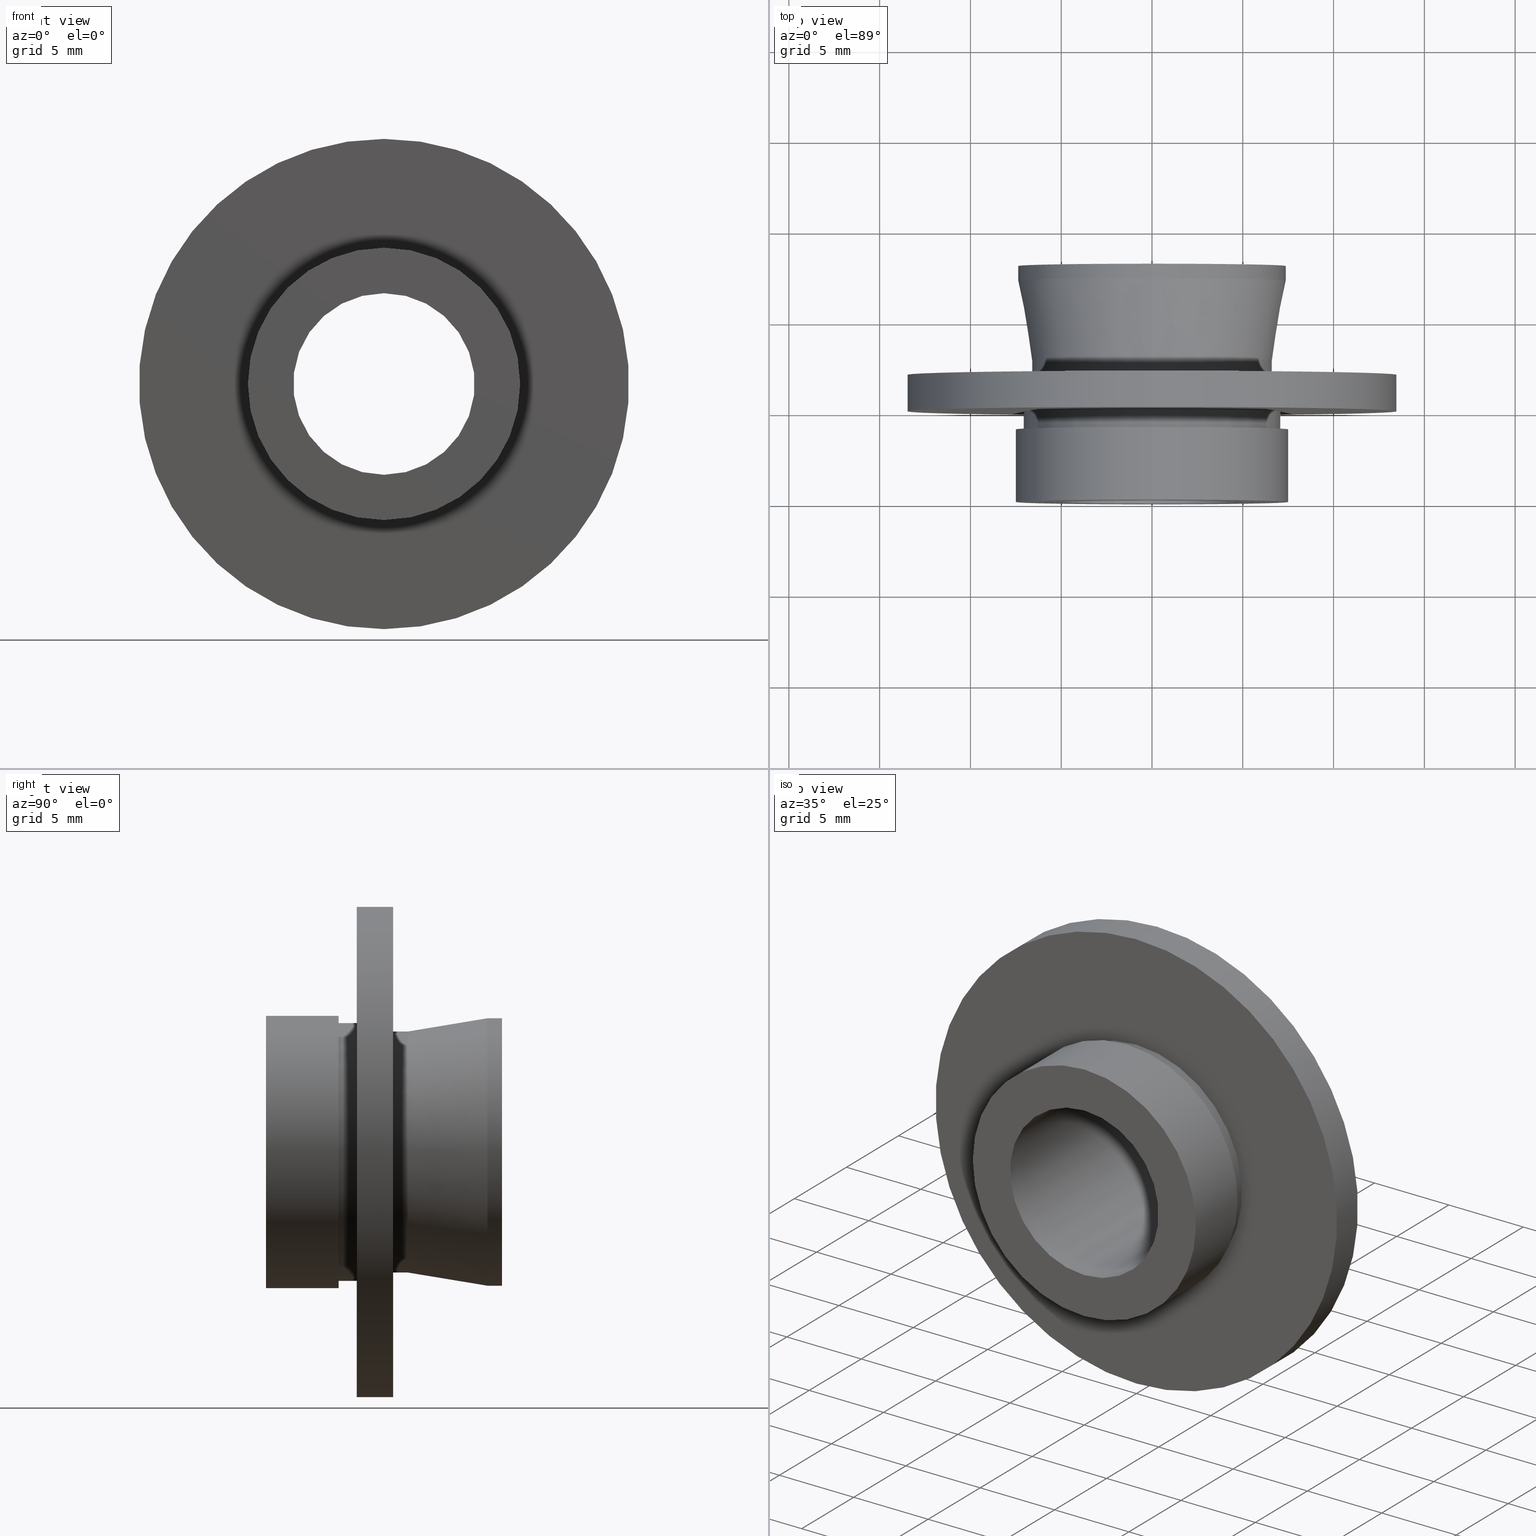
[diagram: canonical four-view strip — front | top / right | iso, engineering-drawing reading convention]
A machine part, canonical four-view strip (front | top / right | iso — engineering-drawing reading convention). The complete STEP part file that produces these views, byte-faithful:
ISO-10303-21;
HEADER;
FILE_DESCRIPTION (( 'STEP AP203' ),
    '1' );
FILE_NAME ('510019.STEP',
    '2019-09-29T08:12:36',
    ( '' ),
    ( '' ),
    'SwSTEP 2.0',
    'SolidWorks 2016',
    '' );
FILE_SCHEMA (( 'CONFIG_CONTROL_DESIGN' ));
ENDSEC;

DATA;
#1 = CARTESIAN_POINT ( 'NONE',  ( 0.0000000000000000000, 7.000000000000000000, -6.634999999999999800 ) ) ;
#2 = ORIENTED_EDGE ( 'NONE', *, *, #407, .F. ) ;
#3 = FACE_OUTER_BOUND ( 'NONE', #306, .T. ) ;
#4 = ORIENTED_EDGE ( 'NONE', *, *, #476, .F. ) ;
#5 = FACE_OUTER_BOUND ( 'NONE', #606, .T. ) ;
#6 = CARTESIAN_POINT ( 'NONE',  ( 0.0000000000000000000, 0.0000000000000000000, 0.0000000000000000000 ) ) ;
#7 = DATE_AND_TIME ( #576, #312 ) ;
#8 = CARTESIAN_POINT ( 'NONE',  ( 9.019523675720257200E-016, 13.00000000000000200, 7.365000000000000200 ) ) ;
#9 = DATE_AND_TIME ( #134, #206 ) ;
#10 = VERTEX_POINT ( 'NONE', #151 ) ;
#11 = VERTEX_POINT ( 'NONE', #205 ) ;
#12 = PRODUCT_DEFINITION_FORMATION_WITH_SPECIFIED_SOURCE ( '�κ�', '', #82, .NOT_KNOWN. ) ;
#13 = DIRECTION ( 'NONE',  ( 0.0000000000000000000, 0.0000000000000000000, -1.000000000000000000 ) ) ;
#14 = EDGE_CURVE ( 'NONE', #282, #118, #126, .T. ) ;
#15 = APPLICATION_CONTEXT ( 'configuration controlled 3d designs of mechanical parts and assemblies' ) ;
#16 = DIRECTION ( 'NONE',  ( -0.0000000000000000000, -1.000000000000000000, -0.0000000000000000000 ) ) ;
#17 = ORIENTED_EDGE ( 'NONE', *, *, #444, .F. ) ;
#18 = VECTOR ( 'NONE', #60, 1000.000000000000000 ) ;
#19 = DIRECTION ( 'NONE',  ( 1.000000000000000000, 0.0000000000000000000, 0.0000000000000000000 ) ) ;
#20 = EDGE_CURVE ( 'NONE', #11, #654, #90, .T. ) ;
#21 = DIRECTION ( 'NONE',  ( 1.000000000000000000, 0.0000000000000000000, 0.0000000000000000000 ) ) ;
#22 = CARTESIAN_POINT ( 'NONE',  ( 0.0000000000000000000, 3.999999999999996400, 0.0000000000000000000 ) ) ;
#23 = APPROVAL_DATE_TIME ( #152, #108 ) ;
#24 = EDGE_LOOP ( 'NONE', ( #499, #498, #435, #170 ) ) ;
#25 = DIRECTION ( 'NONE',  ( 0.0000000000000000000, -0.0000000000000000000, 1.000000000000000000 ) ) ;
#26 = ORIENTED_EDGE ( 'NONE', *, *, #323, .F. ) ;
#27 = APPROVAL ( #532, 'δָ��' ) ;
#28 = CYLINDRICAL_SURFACE ( 'NONE', #285, 7.365000000000000200 ) ;
#29 = ADVANCED_FACE ( 'NONE', ( #241 ), #246, .T. ) ;
#30 = CARTESIAN_POINT ( 'NONE',  ( 9.019523675720257200E-016, 12.20000000000000100, -7.365000000000001100 ) ) ;
#31 = AXIS2_PLACEMENT_3D ( 'NONE', #145, #192, #248 ) ;
#32 = ADVANCED_FACE ( 'NONE', ( #565 ), #371, .T. ) ;
#33 = ORIENTED_EDGE ( 'NONE', *, *, #334, .F. ) ;
#34 = AXIS2_PLACEMENT_3D ( 'NONE', #535, #219, #582 ) ;
#35 = CIRCLE ( 'NONE', #665, 13.49999999999999800 ) ;
#36 = FACE_OUTER_BOUND ( 'NONE', #380, .T. ) ;
#37 = AXIS2_PLACEMENT_3D ( 'NONE', #338, #329, #221 ) ;
#38 = DATE_AND_TIME ( #117, #519 ) ;
#39 = VERTEX_POINT ( 'NONE', #415 ) ;
#40 = VECTOR ( 'NONE', #403, 1000.000000000000000 ) ;
#41 = CARTESIAN_POINT ( 'NONE',  ( 0.0000000000000000000, 13.00000000000000200, 0.0000000000000000000 ) ) ;
#42 = CC_DESIGN_PERSON_AND_ORGANIZATION_ASSIGNMENT ( #569, #426, ( #133 ) ) ;
#43 = DIRECTION ( 'NONE',  ( 0.0000000000000000000, 0.0000000000000000000, -1.000000000000000000 ) ) ;
#44 = CALENDAR_DATE ( 2019, 29, 9 ) ;
#45 = APPROVAL_PERSON_ORGANIZATION ( #452, #573, #584 ) ;
#46 = ORIENTED_EDGE ( 'NONE', *, *, #437, .F. ) ;
#47 = LINE ( 'NONE', #503, #171 ) ;
#48 = EDGE_CURVE ( 'NONE', #118, #282, #110, .T. ) ;
#49 = CARTESIAN_POINT ( 'NONE',  ( 8.694992273946205800E-016, 0.0000000000000000000, 7.099999999999998800 ) ) ;
#50 = VECTOR ( 'NONE', #640, 1000.000000000000000 ) ;
#51 = PLANE ( 'NONE',  #93 ) ;
#52 = DIRECTION ( 'NONE',  ( 0.0000000000000000000, 0.0000000000000000000, -1.000000000000000000 ) ) ;
#53 = EDGE_CURVE ( 'NONE', #414, #336, #608, .T. ) ;
#54 = CARTESIAN_POINT ( 'NONE',  ( 0.0000000000000000000, 0.0000000000000000000, 0.0000000000000000000 ) ) ;
#55 = COORDINATED_UNIVERSAL_TIME_OFFSET ( 8, 0, .AHEAD. ) ;
#56 = ORIENTED_EDGE ( 'NONE', *, *, #408, .T. ) ;
#57 = CARTESIAN_POINT ( 'NONE',  ( 0.0000000000000000000, 12.20000000000000100, 7.365000000000001100 ) ) ;
#58 = CARTESIAN_POINT ( 'NONE',  ( 8.125531512342689100E-016, 0.0000000000000000000, 6.635000000000000700 ) ) ;
#59 = CARTESIAN_POINT ( 'NONE',  ( 0.0000000000000000000, 6.999999999999999100, 0.0000000000000000000 ) ) ;
#60 = DIRECTION ( 'NONE',  ( -0.0000000000000000000, -1.000000000000000000, -0.0000000000000000000 ) ) ;
#61 = DATE_AND_TIME ( #187, #175 ) ;
#62 = APPROVAL_ROLE ( '' ) ;
#63 = EDGE_LOOP ( 'NONE', ( #404, #579 ) ) ;
#64 = AXIS2_PLACEMENT_3D ( 'NONE', #59, #305, #13 ) ;
#65 = CYLINDRICAL_SURFACE ( 'NONE', #637, 13.49999999999999800 ) ;
#66 = CARTESIAN_POINT ( 'NONE',  ( 0.0000000000000000000, 12.20000000000000100, 0.0000000000000000000 ) ) ;
#67 = FACE_OUTER_BOUND ( 'NONE', #182, .T. ) ;
#68 = SECURITY_CLASSIFICATION_LEVEL ( 'unclassified' ) ;
#69 = AXIS2_PLACEMENT_3D ( 'NONE', #575, #72, #264 ) ;
#70 = SECURITY_CLASSIFICATION_LEVEL ( 'unclassified' ) ;
#71 = PERSON_AND_ORGANIZATION_ROLE ( 'design_owner' ) ;
#72 = DIRECTION ( 'NONE',  ( -0.0000000000000000000, -1.000000000000000000, -0.0000000000000000000 ) ) ;
#73 = ORIENTED_EDGE ( 'NONE', *, *, #299, .T. ) ;
#74 = ORIENTED_EDGE ( 'NONE', *, *, #585, .F. ) ;
#75 = CIRCLE ( 'NONE', #534, 5.000000000000000000 ) ;
#76 = AXIS2_PLACEMENT_3D ( 'NONE', #433, #493, #658 ) ;
#77 = APPROVAL_ROLE ( '' ) ;
#78 = CARTESIAN_POINT ( 'NONE',  ( 0.0000000000000000000, 2.155083489784135800E-015, 0.0000000000000000000 ) ) ;
#79 = ORIENTED_EDGE ( 'NONE', *, *, #550, .T. ) ;
#80 = EDGE_CURVE ( 'NONE', #459, #439, #542, .T. ) ;
#81 = ADVANCED_FACE ( 'NONE', ( #583, #487 ), #324, .F. ) ;
#82 = PRODUCT ( '510019', '510019', '', ( #372 ) ) ;
#83 = ORIENTED_EDGE ( 'NONE', *, *, #84, .F. ) ;
#84 = EDGE_CURVE ( 'NONE', #562, #313, #523, .T. ) ;
#85 = ORIENTED_EDGE ( 'NONE', *, *, #508, .F. ) ;
#86 = CARTESIAN_POINT ( 'NONE',  ( 0.0000000000000000000, 7.800000000000000700, 0.0000000000000000000 ) ) ;
#87 = CARTESIAN_POINT ( 'NONE',  ( 0.0000000000000000000, 2.155083489784135800E-015, 0.0000000000000000000 ) ) ;
#88 = COORDINATED_UNIVERSAL_TIME_OFFSET ( 8, 0, .AHEAD. ) ;
#89 = PERSON_AND_ORGANIZATION ( #553, #643 ) ;
#90 = CIRCLE ( 'NONE', #146, 7.499999999999998200 ) ;
#91 = CARTESIAN_POINT ( 'NONE',  ( 0.0000000000000000000, 0.0000000000000000000, 0.0000000000000000000 ) ) ;
#92 = ORIENTED_EDGE ( 'NONE', *, *, #443, .T. ) ;
#93 = AXIS2_PLACEMENT_3D ( 'NONE', #150, #619, #154 ) ;
#94 = AXIS2_PLACEMENT_3D ( 'NONE', #164, #273, #638 ) ;
#95 = CARTESIAN_POINT ( 'NONE',  ( 0.0000000000000000000, 6.999999999999999100, 0.0000000000000000000 ) ) ;
#96 = EDGE_LOOP ( 'NONE', ( #395, #548 ) ) ;
#97 = CIRCLE ( 'NONE', #295, 6.635000000000000700 ) ;
#98 = ORIENTED_EDGE ( 'NONE', *, *, #437, .T. ) ;
#99 = VECTOR ( 'NONE', #103, 1000.000000000000000 ) ;
#100 = CARTESIAN_POINT ( 'NONE',  ( 0.0000000000000000000, 7.000000000000000000, 0.0000000000000000000 ) ) ;
#101 = AXIS2_PLACEMENT_3D ( 'NONE', #281, #552, #385 ) ;
#102 = CARTESIAN_POINT ( 'NONE',  ( 0.0000000000000000000, 13.00000000000000200, 0.0000000000000000000 ) ) ;
#103 = DIRECTION ( 'NONE',  ( -0.0000000000000000000, -1.000000000000000000, -0.0000000000000000000 ) ) ;
#104 = APPROVAL_DATE_TIME ( #310, #438 ) ;
#105 = DIRECTION ( 'NONE',  ( 0.0000000000000000000, 0.0000000000000000000, -1.000000000000000000 ) ) ;
#106 = LOCAL_TIME ( 16, 12, 36.00000000000000000, #464 ) ;
#107 = ORIENTED_EDGE ( 'NONE', *, *, #365, .T. ) ;
#108 = APPROVAL ( #165, 'δָ��' ) ;
#109 = ORIENTED_EDGE ( 'NONE', *, *, #218, .T. ) ;
#110 = CIRCLE ( 'NONE', #649, 7.499999999999999100 ) ;
#111 = CARTESIAN_POINT ( 'NONE',  ( 6.123233995736765300E-016, 13.00000000000000200, 4.999999999999999100 ) ) ;
#112 = PLANE ( 'NONE',  #229 ) ;
#113 = PRODUCT ( '510019', '510019', '', ( #422 ) ) ;
#114 = PERSON_AND_ORGANIZATION_ROLE ( 'design_supplier' ) ;
#115 = AXIS2_PLACEMENT_3D ( 'NONE', #461, #515, #193 ) ;
#116 = PERSON_AND_ORGANIZATION_ROLE ( 'design_owner' ) ;
#117 = CALENDAR_DATE ( 2019, 29, 9 ) ;
#118 = VERTEX_POINT ( 'NONE', #427 ) ;
#119 = CIRCLE ( 'NONE', #227, 6.634999999999999800 ) ;
#120 = DIRECTION ( 'NONE',  ( -0.0000000000000000000, -1.000000000000000000, -0.0000000000000000000 ) ) ;
#121 = ORIENTED_EDGE ( 'NONE', *, *, #614, .F. ) ;
#122 = LINE ( 'NONE', #180, #511 ) ;
#123 = DIRECTION ( 'NONE',  ( 0.0000000000000000000, 0.0000000000000000000, -1.000000000000000000 ) ) ;
#124 = CARTESIAN_POINT ( 'NONE',  ( 0.0000000000000000000, 4.999999999999996400, -7.099999999999998800 ) ) ;
#125 = COORDINATED_UNIVERSAL_TIME_OFFSET ( 8, 0, .AHEAD. ) ;
#126 = CIRCLE ( 'NONE', #115, 7.499999999999999100 ) ;
#127 = ORIENTED_EDGE ( 'NONE', *, *, #615, .F. ) ;
#128 = CIRCLE ( 'NONE', #163, 5.000000000000000000 ) ;
#129 = ADVANCED_FACE ( 'NONE', ( #5 ), #278, .T. ) ;
#130 = VECTOR ( 'NONE', #169, 1000.000000000000000 ) ;
#131 = DIRECTION ( 'NONE',  ( -0.0000000000000000000, -1.000000000000000000, -0.0000000000000000000 ) ) ;
#132 = ADVANCED_FACE ( 'NONE', ( #155, #211 ), #112, .F. ) ;
#133 = SECURITY_CLASSIFICATION ( '', '', #70 ) ;
#134 = CALENDAR_DATE ( 2019, 29, 9 ) ;
#135 = ORIENTED_EDGE ( 'NONE', *, *, #432, .F. ) ;
#136 = CIRCLE ( 'NONE', #266, 7.099999999999999600 ) ;
#137 = CARTESIAN_POINT ( 'NONE',  ( 0.0000000000000000000, 0.0000000000000000000, -7.365000000000000200 ) ) ;
#138 = CARTESIAN_POINT ( 'NONE',  ( 0.0000000000000000000, 12.20000000000000100, -7.365000000000001100 ) ) ;
#139 = PERSON_AND_ORGANIZATION ( #553, #643 ) ;
#140 = ORIENTED_EDGE ( 'NONE', *, *, #586, .T. ) ;
#141 = EDGE_LOOP ( 'NONE', ( #26, #303, #209, #4 ) ) ;
#142 = CIRCLE ( 'NONE', #76, 4.999999999999999100 ) ;
#143 = CC_DESIGN_APPROVAL ( #108, ( #384 ) ) ;
#144 = CARTESIAN_POINT ( 'NONE',  ( 0.0000000000000000000, 0.0000000000000000000, -4.999999999999999100 ) ) ;
#145 = CARTESIAN_POINT ( 'NONE',  ( 0.0000000000000000000, 0.0000000000000000000, 0.0000000000000000000 ) ) ;
#146 = AXIS2_PLACEMENT_3D ( 'NONE', #6, #352, #52 ) ;
#147 = CARTESIAN_POINT ( 'NONE',  ( 0.0000000000000000000, 4.999999999999999100, -13.49999999999999800 ) ) ;
#148 = CIRCLE ( 'NONE', #64, 13.49999999999999800 ) ;
#149 = DIRECTION ( 'NONE',  ( -0.0000000000000000000, -1.000000000000000000, -0.0000000000000000000 ) ) ;
#150 = CARTESIAN_POINT ( 'NONE',  ( -4.999999999999999100, 13.00000000000000200, 0.0000000000000000000 ) ) ;
#151 = CARTESIAN_POINT ( 'NONE',  ( 0.0000000000000000000, 6.999999999999999100, -13.49999999999999800 ) ) ;
#152 = DATE_AND_TIME ( #195, #478 ) ;
#153 = VERTEX_POINT ( 'NONE', #316 ) ;
#154 = DIRECTION ( 'NONE',  ( 0.0000000000000000000, 0.0000000000000000000, -1.000000000000000000 ) ) ;
#155 = FACE_BOUND ( 'NONE', #397, .T. ) ;
#156 = DIRECTION ( 'NONE',  ( 0.0000000000000000000, 0.0000000000000000000, -1.000000000000000000 ) ) ;
#157 = DIRECTION ( 'NONE',  ( 0.0000000000000000000, 0.0000000000000000000, -1.000000000000000000 ) ) ;
#158 = DIRECTION ( 'NONE',  ( -0.0000000000000000000, -1.000000000000000000, -0.0000000000000000000 ) ) ;
#159 = AXIS2_PLACEMENT_3D ( 'NONE', #102, #460, #157 ) ;
#160 = DIRECTION ( 'NONE',  ( 0.0000000000000000000, 0.0000000000000000000, -1.000000000000000000 ) ) ;
#161 = ORIENTED_EDGE ( 'NONE', *, *, #53, .T. ) ;
#162 = LINE ( 'NONE', #484, #331 ) ;
#163 = AXIS2_PLACEMENT_3D ( 'NONE', #87, #149, #506 ) ;
#164 = CARTESIAN_POINT ( 'NONE',  ( 0.0000000000000000000, 12.20000000000000100, 0.0000000000000000000 ) ) ;
#165 = APPROVAL_STATUS ( 'not_yet_approved' ) ;
#166 = CARTESIAN_POINT ( 'NONE',  ( 0.0000000000000000000, 12.20000000000000100, 0.0000000000000000000 ) ) ;
#167 = PERSON_AND_ORGANIZATION_ROLE ( 'design_supplier' ) ;
#168 = ORIENTED_EDGE ( 'NONE', *, *, #333, .F. ) ;
#169 = DIRECTION ( 'NONE',  ( -0.0000000000000000000, -1.000000000000000000, -0.0000000000000000000 ) ) ;
#170 = ORIENTED_EDGE ( 'NONE', *, *, #20, .F. ) ;
#171 = VECTOR ( 'NONE', #401, 1000.000000000000000 ) ;
#172 = CC_DESIGN_PERSON_AND_ORGANIZATION_ASSIGNMENT ( #250, #116, ( #82 ) ) ;
#173 = PLANE ( 'NONE',  #350 ) ;
#174 = APPROVAL_PERSON_ORGANIZATION ( #222, #438, #315 ) ;
#175 = LOCAL_TIME ( 16, 12, 36.00000000000000000, #125 ) ;
#176 = EDGE_LOOP ( 'NONE', ( #121, #179 ) ) ;
#177 = AXIS2_PLACEMENT_3D ( 'NONE', #409, #300, #571 ) ;
#178 = ADVANCED_FACE ( 'NONE', ( #425 ), #531, .T. ) ;
#179 = ORIENTED_EDGE ( 'NONE', *, *, #509, .F. ) ;
#180 = CARTESIAN_POINT ( 'NONE',  ( 0.0000000000000000000, 0.0000000000000000000, -6.635000000000000700 ) ) ;
#181 = ADVANCED_FACE ( 'NONE', ( #390 ), #559, .F. ) ;
#182 = EDGE_LOOP ( 'NONE', ( #197, #2, #140, #257 ) ) ;
#183 = FACE_OUTER_BOUND ( 'NONE', #590, .T. ) ;
#184 = DIRECTION ( 'NONE',  ( 0.0000000000000000000, 1.000000000000000000, 0.0000000000000000000 ) ) ;
#185 = ADVANCED_FACE ( 'NONE', ( #549 ), #501, .F. ) ;
#186 = DIRECTION ( 'NONE',  ( -0.0000000000000000000, -1.000000000000000000, -0.0000000000000000000 ) ) ;
#187 = CALENDAR_DATE ( 2019, 29, 9 ) ;
#188 = ORIENTED_EDGE ( 'NONE', *, *, #656, .F. ) ;
#189 = CARTESIAN_POINT ( 'NONE',  ( 0.0000000000000000000, 2.155083489784135800E-015, -5.000000000000000000 ) ) ;
#190 = CIRCLE ( 'NONE', #270, 7.365000000000001100 ) ;
#191 = AXIS2_PLACEMENT_3D ( 'NONE', #418, #208, #105 ) ;
#192 = DIRECTION ( 'NONE',  ( -0.0000000000000000000, -1.000000000000000000, -0.0000000000000000000 ) ) ;
#193 = DIRECTION ( 'NONE',  ( 0.0000000000000000000, 0.0000000000000000000, -1.000000000000000000 ) ) ;
#194 = DIRECTION ( 'NONE',  ( -0.0000000000000000000, -1.000000000000000000, -0.0000000000000000000 ) ) ;
#195 = CALENDAR_DATE ( 2019, 29, 9 ) ;
#196 = ORIENTED_EDGE ( 'NONE', *, *, #543, .T. ) ;
#197 = ORIENTED_EDGE ( 'NONE', *, *, #408, .F. ) ;
#198 = CIRCLE ( 'NONE', #428, 13.49999999999999800 ) ;
#199 = CC_DESIGN_PERSON_AND_ORGANIZATION_ASSIGNMENT ( #89, #220, ( #339 ) ) ;
#200 = CARTESIAN_POINT ( 'NONE',  ( 0.0000000000000000000, 0.0000000000000000000, 0.0000000000000000000 ) ) ;
#201 = CARTESIAN_POINT ( 'NONE',  ( 0.0000000000000000000, 0.0000000000000000000, 0.0000000000000000000 ) ) ;
#202 = PERSON_AND_ORGANIZATION ( #553, #643 ) ;
#203 = DIRECTION ( 'NONE',  ( 0.0000000000000000000, 0.0000000000000000000, 1.000000000000000000 ) ) ;
#204 = CC_DESIGN_DATE_AND_TIME_ASSIGNMENT ( #485, #630, ( #133 ) ) ;
#205 = CARTESIAN_POINT ( 'NONE',  ( 9.184850993605146000E-016, 0.0000000000000000000, 7.499999999999998200 ) ) ;
#206 = LOCAL_TIME ( 16, 12, 36.00000000000000000, #413 ) ;
#207 = ORIENTED_EDGE ( 'NONE', *, *, #14, .T. ) ;
#208 = DIRECTION ( 'NONE',  ( -0.0000000000000000000, -1.000000000000000000, -0.0000000000000000000 ) ) ;
#209 = ORIENTED_EDGE ( 'NONE', *, *, #508, .T. ) ;
#210 = CARTESIAN_POINT ( 'NONE',  ( 0.0000000000000000000, 12.20000000000000100, 0.0000000000000000000 ) ) ;
#211 = FACE_OUTER_BOUND ( 'NONE', #370, .T. ) ;
#212 = APPLICATION_PROTOCOL_DEFINITION ( 'international standard', 'config_control_design', 1994, #15 ) ;
#213 = AXIS2_PLACEMENT_3D ( 'NONE', #420, #158, #635 ) ;
#214 = PERSON_AND_ORGANIZATION_ROLE ( 'creator' ) ;
#215 = APPROVAL_STATUS ( 'not_yet_approved' ) ;
#216 = VERTEX_POINT ( 'NONE', #626 ) ;
#217 = APPLICATION_CONTEXT ( 'configuration controlled 3d designs of mechanical parts and assemblies' ) ;
#218 = EDGE_CURVE ( 'NONE', #313, #562, #190, .T. ) ;
#219 = DIRECTION ( 'NONE',  ( -0.0000000000000000000, -1.000000000000000000, -0.0000000000000000000 ) ) ;
#220 = PERSON_AND_ORGANIZATION_ROLE ( 'creator' ) ;
#221 = DIRECTION ( 'NONE',  ( 0.0000000000000000000, 0.0000000000000000000, -1.000000000000000000 ) ) ;
#222 = PERSON_AND_ORGANIZATION ( #553, #643 ) ;
#223 = CARTESIAN_POINT ( 'NONE',  ( 0.0000000000000000000, 0.0000000000000000000, -13.49999999999999800 ) ) ;
#224 = CARTESIAN_POINT ( 'NONE',  ( -7.499999999999998200, 1.077541744892067900E-015, 0.0000000000000000000 ) ) ;
#225 = ORIENTED_EDGE ( 'NONE', *, *, #48, .F. ) ;
#226 = LINE ( 'NONE', #436, #130 ) ;
#227 = AXIS2_PLACEMENT_3D ( 'NONE', #100, #311, #156 ) ;
#228 = ADVANCED_FACE ( 'NONE', ( #67 ), #655, .T. ) ;
#229 = AXIS2_PLACEMENT_3D ( 'NONE', #526, #631, #373 ) ;
#230 = APPROVAL_DATE_TIME ( #9, #245 ) ;
#231 = ORIENTED_EDGE ( 'NONE', *, *, #272, .T. ) ;
#232 = FACE_BOUND ( 'NONE', #491, .T. ) ;
#233 = ORIENTED_EDGE ( 'NONE', *, *, #272, .F. ) ;
#234 = LINE ( 'NONE', #236, #663 ) ;
#235 = ADVANCED_FACE ( 'NONE', ( #354, #296 ), #267, .F. ) ;
#236 = CARTESIAN_POINT ( 'NONE',  ( 0.0000000000000000000, 0.0000000000000000000, -7.099999999999998800 ) ) ;
#237 = CC_DESIGN_DATE_AND_TIME_ASSIGNMENT ( #386, #363, ( #339 ) ) ;
#238 = CARTESIAN_POINT ( 'NONE',  ( 0.0000000000000000000, 3.999999999999996400, -7.099999999999999600 ) ) ;
#239 = APPROVAL_DATE_TIME ( #7, #573 ) ;
#240 = APPROVAL_PERSON_ORGANIZATION ( #302, #450, #527 ) ;
#241 = FACE_OUTER_BOUND ( 'NONE', #480, .T. ) ;
#242 = CARTESIAN_POINT ( 'NONE',  ( 0.0000000000000000000, 4.999999999999999100, 0.0000000000000000000 ) ) ;
#243 = ORIENTED_EDGE ( 'NONE', *, *, #400, .T. ) ;
#244 = CYLINDRICAL_SURFACE ( 'NONE', #31, 7.099999999999998800 ) ;
#245 = APPROVAL ( #374, 'δָ��' ) ;
#246 = CYLINDRICAL_SURFACE ( 'NONE', #177, 6.635000000000000700 ) ;
#247 = CARTESIAN_POINT ( 'NONE',  ( 9.184850993605146000E-016, 0.0000000000000000000, 7.499999999999998200 ) ) ;
#248 = DIRECTION ( 'NONE',  ( 0.0000000000000000000, 0.0000000000000000000, -1.000000000000000000 ) ) ;
#249 = DIRECTION ( 'NONE',  ( -0.0000000000000000000, -1.000000000000000000, -0.0000000000000000000 ) ) ;
#250 = PERSON_AND_ORGANIZATION ( #553, #643 ) ;
#251 = ORIENTED_EDGE ( 'NONE', *, *, #407, .T. ) ;
#252 = FACE_OUTER_BOUND ( 'NONE', #539, .T. ) ;
#253 = CARTESIAN_POINT ( 'NONE',  ( 0.0000000000000000000, 4.999999999999999100, 0.0000000000000000000 ) ) ;
#254 = DIRECTION ( 'NONE',  ( -0.0000000000000000000, -1.000000000000000000, -0.0000000000000000000 ) ) ;
#255 =( NAMED_UNIT ( * ) SI_UNIT ( $, .STERADIAN. ) SOLID_ANGLE_UNIT ( ) );
#256 = CALENDAR_DATE ( 2019, 29, 9 ) ;
#257 = ORIENTED_EDGE ( 'NONE', *, *, #84, .T. ) ;
#258 = ORIENTED_EDGE ( 'NONE', *, *, #392, .F. ) ;
#259 = VECTOR ( 'NONE', #642, 1000.000000000000000 ) ;
#260 = CIRCLE ( 'NONE', #319, 4.999999999999999100 ) ;
#261 = CARTESIAN_POINT ( 'NONE',  ( 0.0000000000000000000, 0.0000000000000000000, 0.0000000000000000000 ) ) ;
#262 = DIRECTION ( 'NONE',  ( 0.0000000000000000000, 0.0000000000000000000, -1.000000000000000000 ) ) ;
#263 = DESIGN_CONTEXT ( 'detailed design', #217, 'design' ) ;
#264 = DIRECTION ( 'NONE',  ( 0.0000000000000000000, 0.0000000000000000000, -1.000000000000000000 ) ) ;
#265 = DATE_TIME_ROLE ( 'creation_date' ) ;
#266 = AXIS2_PLACEMENT_3D ( 'NONE', #301, #357, #410 ) ;
#267 = PLANE ( 'NONE',  #628 ) ;
#268 = APPROVAL_PERSON_ORGANIZATION ( #288, #245, #77 ) ;
#269 = ORIENTED_EDGE ( 'NONE', *, *, #543, .F. ) ;
#270 = AXIS2_PLACEMENT_3D ( 'NONE', #66, #16, #421 ) ;
#271 = CIRCLE ( 'NONE', #159, 7.365000000000000200 ) ;
#272 = EDGE_CURVE ( 'NONE', #10, #448, #597, .T. ) ;
#273 = DIRECTION ( 'NONE',  ( 0.0000000000000000000, 1.000000000000000000, 0.0000000000000000000 ) ) ;
#274 = DIRECTION ( 'NONE',  ( 0.0000000000000000000, -1.000000000000000000, -0.0000000000000000000 ) ) ;
#275 = AXIS2_PLACEMENT_3D ( 'NONE', #521, #203, #19 ) ;
#276 = ORIENTED_EDGE ( 'NONE', *, *, #476, .T. ) ;
#277 = EDGE_LOOP ( 'NONE', ( #46, #405, #636, #83 ) ) ;
#278 = CONICAL_SURFACE ( 'NONE', #442, 7.365000000000001100, 0.1644114862470267300 ) ;
#279 = DIRECTION ( 'NONE',  ( 0.0000000000000000000, 0.0000000000000000000, -1.000000000000000000 ) ) ;
#280 = CC_DESIGN_SECURITY_CLASSIFICATION ( #133, ( #304 ) ) ;
#281 = CARTESIAN_POINT ( 'NONE',  ( 0.0000000000000000000, 3.999999999999996400, 0.0000000000000000000 ) ) ;
#282 = VERTEX_POINT ( 'NONE', #366 ) ;
#283 = LINE ( 'NONE', #30, #259 ) ;
#284 = ADVANCED_FACE ( 'NONE', ( #36 ), #28, .T. ) ;
#285 = AXIS2_PLACEMENT_3D ( 'NONE', #362, #477, #379 ) ;
#286 = EDGE_CURVE ( 'NONE', #368, #39, #382, .T. ) ;
#287 = DIRECTION ( 'NONE',  ( -0.0000000000000000000, -1.000000000000000000, -0.0000000000000000000 ) ) ;
#288 = PERSON_AND_ORGANIZATION ( #553, #643 ) ;
#289 = ORIENTED_EDGE ( 'NONE', *, *, #475, .F. ) ;
#290 = ORIENTED_EDGE ( 'NONE', *, *, #392, .T. ) ;
#291 = LINE ( 'NONE', #49, #381 ) ;
#292 = DIRECTION ( 'NONE',  ( -0.0000000000000000000, -1.000000000000000000, -0.0000000000000000000 ) ) ;
#293 = DIRECTION ( 'NONE',  ( 0.0000000000000000000, 0.0000000000000000000, -1.000000000000000000 ) ) ;
#294 = EDGE_LOOP ( 'NONE', ( #510, #251, #73, #74 ) ) ;
#295 = AXIS2_PLACEMENT_3D ( 'NONE', #355, #254, #462 ) ;
#296 = FACE_BOUND ( 'NONE', #570, .T. ) ;
#297 = DIRECTION ( 'NONE',  ( 0.0000000000000000000, 0.0000000000000000000, -1.000000000000000000 ) ) ;
#298 = AXIS2_PLACEMENT_3D ( 'NONE', #210, #430, #473 ) ;
#299 = EDGE_CURVE ( 'NONE', #617, #490, #122, .T. ) ;
#300 = DIRECTION ( 'NONE',  ( -0.0000000000000000000, -1.000000000000000000, -0.0000000000000000000 ) ) ;
#301 = CARTESIAN_POINT ( 'NONE',  ( 0.0000000000000000000, 3.999999999999996400, 0.0000000000000000000 ) ) ;
#302 = PERSON_AND_ORGANIZATION ( #553, #643 ) ;
#303 = ORIENTED_EDGE ( 'NONE', *, *, #609, .T. ) ;
#304 = PRODUCT_DEFINITION_FORMATION_WITH_SPECIFIED_SOURCE ( '�κ�', '', #113, .NOT_KNOWN. ) ;
#305 = DIRECTION ( 'NONE',  ( -0.0000000000000000000, -1.000000000000000000, -0.0000000000000000000 ) ) ;
#306 = EDGE_LOOP ( 'NONE', ( #207, #623, #447, #555 ) ) ;
#307 = DIRECTION ( 'NONE',  ( 0.0000000000000000000, 0.0000000000000000000, -1.000000000000000000 ) ) ;
#308 = DIRECTION ( 'NONE',  ( 0.0000000000000000000, 0.0000000000000000000, -1.000000000000000000 ) ) ;
#309 = CC_DESIGN_APPROVAL ( #245, ( #133 ) ) ;
#310 = DATE_AND_TIME ( #44, #394 ) ;
#311 = DIRECTION ( 'NONE',  ( -0.0000000000000000000, -1.000000000000000000, -0.0000000000000000000 ) ) ;
#312 = LOCAL_TIME ( 16, 12, 36.00000000000000000, #595 ) ;
#313 = VERTEX_POINT ( 'NONE', #138 ) ;
#314 = LINE ( 'NONE', #144, #398 ) ;
#315 = APPROVAL_ROLE ( '' ) ;
#316 = CARTESIAN_POINT ( 'NONE',  ( 0.0000000000000000000, 13.00000000000000200, -4.999999999999999100 ) ) ;
#317 = PERSON_AND_ORGANIZATION_ROLE ( 'creator' ) ;
#318 = DIRECTION ( 'NONE',  ( 0.0000000000000000000, -1.000000000000000000, -0.0000000000000000000 ) ) ;
#319 = AXIS2_PLACEMENT_3D ( 'NONE', #41, #131, #123 ) ;
#320 = APPROVAL_STATUS ( 'not_yet_approved' ) ;
#321 = CARTESIAN_POINT ( 'NONE',  ( 0.0000000000000000000, 0.0000000000000000000, 0.0000000000000000000 ) ) ;
#322 = ORIENTED_EDGE ( 'NONE', *, *, #475, .T. ) ;
#323 = EDGE_CURVE ( 'NONE', #644, #153, #142, .T. ) ;
#324 = PLANE ( 'NONE',  #332 ) ;
#325 = CLOSED_SHELL ( 'NONE', ( #657, #547, #651, #29, #129, #284, #181, #396, #185, #598, #32, #228, #488, #235, #445, #132, #441, #81, #178 ) ) ;
#326 = CYLINDRICAL_SURFACE ( 'NONE', #406, 6.635000000000000700 ) ;
#327 = DIRECTION ( 'NONE',  ( -0.0000000000000000000, -1.000000000000000000, -0.0000000000000000000 ) ) ;
#328 = DATE_AND_TIME ( #463, #356 ) ;
#329 = DIRECTION ( 'NONE',  ( -0.0000000000000000000, -1.000000000000000000, -0.0000000000000000000 ) ) ;
#330 = ORIENTED_EDGE ( 'NONE', *, *, #14, .F. ) ;
#331 = VECTOR ( 'NONE', #287, 1000.000000000000000 ) ;
#332 = AXIS2_PLACEMENT_3D ( 'NONE', #533, #274, #160 ) ;
#333 = EDGE_CURVE ( 'NONE', #153, #644, #260, .T. ) ;
#334 = EDGE_CURVE ( 'NONE', #522, #313, #417, .T. ) ;
#335 = LOCAL_TIME ( 16, 12, 36.00000000000000000, #55 ) ;
#336 = VERTEX_POINT ( 'NONE', #556 ) ;
#337 = ORIENTED_EDGE ( 'NONE', *, *, #299, .F. ) ;
#338 = CARTESIAN_POINT ( 'NONE',  ( 0.0000000000000000000, 7.000000000000000000, 0.0000000000000000000 ) ) ;
#339 = PRODUCT_DEFINITION ( 'δ֪', '', #304, #648 ) ;
#340 = ADVANCED_BREP_SHAPE_REPRESENTATION ( '510019', ( #383, #275 ), #594 ) ;
#341 = CARTESIAN_POINT ( 'NONE',  ( 0.0000000000000000000, 4.999999999999996400, 0.0000000000000000000 ) ) ;
#342 = PERSON_AND_ORGANIZATION ( #553, #643 ) ;
#343 = PRODUCT_RELATED_PRODUCT_CATEGORY ( 'detail', '', ( #113 ) ) ;
#344 = ORIENTED_EDGE ( 'NONE', *, *, #550, .F. ) ;
#345 = DIRECTION ( 'NONE',  ( 0.0000000000000000000, 0.0000000000000000000, -1.000000000000000000 ) ) ;
#346 = PRODUCT_DEFINITION_SHAPE ( 'NONE', 'NONE',  #339 ) ;
#347 = CARTESIAN_POINT ( 'NONE',  ( 0.0000000000000000000, 0.0000000000000000000, 0.0000000000000000000 ) ) ;
#348 = DIRECTION ( 'NONE',  ( -0.0000000000000000000, -1.000000000000000000, -0.0000000000000000000 ) ) ;
#349 = APPROVAL_PERSON_ORGANIZATION ( #632, #108, #469 ) ;
#350 = AXIS2_PLACEMENT_3D ( 'NONE', #224, #184, #25 ) ;
#351 = EDGE_LOOP ( 'NONE', ( #618, #359 ) ) ;
#352 = DIRECTION ( 'NONE',  ( -0.0000000000000000000, -1.000000000000000000, -0.0000000000000000000 ) ) ;
#353 = VERTEX_POINT ( 'NONE', #393 ) ;
#354 = FACE_OUTER_BOUND ( 'NONE', #63, .T. ) ;
#355 = CARTESIAN_POINT ( 'NONE',  ( 0.0000000000000000000, 7.800000000000000700, 0.0000000000000000000 ) ) ;
#356 = LOCAL_TIME ( 16, 12, 36.00000000000000000, #517 ) ;
#357 = DIRECTION ( 'NONE',  ( -0.0000000000000000000, -1.000000000000000000, -0.0000000000000000000 ) ) ;
#358 = EDGE_LOOP ( 'NONE', ( #135, #85 ) ) ;
#359 = ORIENTED_EDGE ( 'NONE', *, *, #656, .T. ) ;
#360 = FACE_OUTER_BOUND ( 'NONE', #591, .T. ) ;
#361 = FACE_OUTER_BOUND ( 'NONE', #96, .T. ) ;
#362 = CARTESIAN_POINT ( 'NONE',  ( 0.0000000000000000000, 0.0000000000000000000, 0.0000000000000000000 ) ) ;
#363 = DATE_TIME_ROLE ( 'creation_date' ) ;
#364 = DIRECTION ( 'NONE',  ( 0.0000000000000000000, 0.0000000000000000000, -1.000000000000000000 ) ) ;
#365 = EDGE_CURVE ( 'NONE', #216, #353, #226, .T. ) ;
#366 = CARTESIAN_POINT ( 'NONE',  ( 0.0000000000000000000, 3.999999999999996400, -7.499999999999999100 ) ) ;
#367 = PERSON_AND_ORGANIZATION ( #553, #643 ) ;
#368 = VERTEX_POINT ( 'NONE', #238 ) ;
#369 = FACE_OUTER_BOUND ( 'NONE', #176, .T. ) ;
#370 = EDGE_LOOP ( 'NONE', ( #322, #196 ) ) ;
#371 = CYLINDRICAL_SURFACE ( 'NONE', #468, 7.365000000000000200 ) ;
#372 = MECHANICAL_CONTEXT ( 'NONE', #592, 'mechanical' ) ;
#373 = DIRECTION ( 'NONE',  ( 0.0000000000000000000, -0.0000000000000000000, 1.000000000000000000 ) ) ;
#374 = APPROVAL_STATUS ( 'not_yet_approved' ) ;
#375 = CC_DESIGN_APPROVAL ( #573, ( #12 ) ) ;
#376 = PERSON_AND_ORGANIZATION ( #553, #643 ) ;
#377 = DIRECTION ( 'NONE',  ( 0.0000000000000000000, 0.0000000000000000000, -1.000000000000000000 ) ) ;
#378 = COORDINATED_UNIVERSAL_TIME_OFFSET ( 8, 0, .AHEAD. ) ;
#379 = DIRECTION ( 'NONE',  ( 0.0000000000000000000, 0.0000000000000000000, -1.000000000000000000 ) ) ;
#380 = EDGE_LOOP ( 'NONE', ( #558, #98, #661, #33 ) ) ;
#381 = VECTOR ( 'NONE', #455, 1000.000000000000000 ) ;
#382 = CIRCLE ( 'NONE', #101, 7.099999999999999600 ) ;
#383 = MANIFOLD_SOLID_BREP ( '��ת1', #325 ) ;
#384 = PRODUCT_DEFINITION ( 'δ֪', '', #12, #263 ) ;
#385 = DIRECTION ( 'NONE',  ( 0.0000000000000000000, 0.0000000000000000000, -1.000000000000000000 ) ) ;
#386 = DATE_AND_TIME ( #528, #335 ) ;
#387 = ORIENTED_EDGE ( 'NONE', *, *, #400, .F. ) ;
#388 = CYLINDRICAL_SURFACE ( 'NONE', #524, 13.49999999999999800 ) ;
#389 = VERTEX_POINT ( 'NONE', #495 ) ;
#390 = FACE_OUTER_BOUND ( 'NONE', #141, .T. ) ;
#391 = AXIS2_PLACEMENT_3D ( 'NONE', #86, #647, #377 ) ;
#392 = EDGE_CURVE ( 'NONE', #414, #368, #234, .T. ) ;
#393 = CARTESIAN_POINT ( 'NONE',  ( 1.653273178848926700E-015, 4.999999999999999100, 13.49999999999999800 ) ) ;
#394 = LOCAL_TIME ( 16, 12, 36.00000000000000000, #88 ) ;
#395 = ORIENTED_EDGE ( 'NONE', *, *, #577, .T. ) ;
#396 = ADVANCED_FACE ( 'NONE', ( #399, #361 ), #173, .F. ) ;
#397 = EDGE_LOOP ( 'NONE', ( #479, #17 ) ) ;
#398 = VECTOR ( 'NONE', #664, 1000.000000000000000 ) ;
#399 = FACE_BOUND ( 'NONE', #358, .T. ) ;
#400 = EDGE_CURVE ( 'NONE', #490, #439, #467, .T. ) ;
#401 = DIRECTION ( 'NONE',  ( -0.0000000000000000000, -1.000000000000000000, -0.0000000000000000000 ) ) ;
#402 = SECURITY_CLASSIFICATION ( '', '', #68 ) ;
#403 = DIRECTION ( 'NONE',  ( -0.0000000000000000000, -1.000000000000000000, -0.0000000000000000000 ) ) ;
#404 = ORIENTED_EDGE ( 'NONE', *, *, #551, .F. ) ;
#405 = ORIENTED_EDGE ( 'NONE', *, *, #509, .T. ) ;
#406 = AXIS2_PLACEMENT_3D ( 'NONE', #91, #610, #297 ) ;
#407 = EDGE_CURVE ( 'NONE', #459, #617, #440, .T. ) ;
#408 = EDGE_CURVE ( 'NONE', #617, #313, #283, .T. ) ;
#409 = CARTESIAN_POINT ( 'NONE',  ( 0.0000000000000000000, 0.0000000000000000000, 0.0000000000000000000 ) ) ;
#410 = DIRECTION ( 'NONE',  ( 0.0000000000000000000, 0.0000000000000000000, -1.000000000000000000 ) ) ;
#411 = CC_DESIGN_PERSON_AND_ORGANIZATION_ASSIGNMENT ( #367, #71, ( #113 ) ) ;
#412 = CARTESIAN_POINT ( 'NONE',  ( 8.572527594031473200E-016, 7.800000000000000700, -6.635000000000000700 ) ) ;
#413 = COORDINATED_UNIVERSAL_TIME_OFFSET ( 8, 0, .AHEAD. ) ;
#414 = VERTEX_POINT ( 'NONE', #124 ) ;
#415 = CARTESIAN_POINT ( 'NONE',  ( 8.694992273946207700E-016, 3.999999999999996400, 7.100000000000000500 ) ) ;
#416 = ORIENTED_EDGE ( 'NONE', *, *, #444, .T. ) ;
#417 = LINE ( 'NONE', #137, #50 ) ;
#418 = CARTESIAN_POINT ( 'NONE',  ( 0.0000000000000000000, 0.0000000000000000000, 0.0000000000000000000 ) ) ;
#419 = DIRECTION ( 'NONE',  ( 0.0000000000000000000, 0.9865148492742904500, 0.1636717818114165100 ) ) ;
#420 = CARTESIAN_POINT ( 'NONE',  ( 0.0000000000000000000, 4.999999999999996400, 0.0000000000000000000 ) ) ;
#421 = DIRECTION ( 'NONE',  ( 0.0000000000000000000, 0.0000000000000000000, -1.000000000000000000 ) ) ;
#422 = MECHANICAL_CONTEXT ( 'NONE', #15, 'mechanical' ) ;
#423 = ORIENTED_EDGE ( 'NONE', *, *, #585, .T. ) ;
#424 = DIRECTION ( 'NONE',  ( -0.0000000000000000000, -1.000000000000000000, -0.0000000000000000000 ) ) ;
#425 = FACE_OUTER_BOUND ( 'NONE', #24, .T. ) ;
#426 = PERSON_AND_ORGANIZATION_ROLE ( 'classification_officer' ) ;
#427 = CARTESIAN_POINT ( 'NONE',  ( 9.184850993605147900E-016, 3.999999999999996400, 7.500000000000000000 ) ) ;
#428 = AXIS2_PLACEMENT_3D ( 'NONE', #95, #348, #500 ) ;
#429 = DIRECTION ( 'NONE',  ( 0.0000000000000000000, 0.0000000000000000000, 1.000000000000000000 ) ) ;
#430 = DIRECTION ( 'NONE',  ( -0.0000000000000000000, -1.000000000000000000, -0.0000000000000000000 ) ) ;
#431 = DATE_TIME_ROLE ( 'classification_date' ) ;
#432 = EDGE_CURVE ( 'NONE', #466, #389, #75, .T. ) ;
#433 = CARTESIAN_POINT ( 'NONE',  ( 0.0000000000000000000, 13.00000000000000200, 0.0000000000000000000 ) ) ;
#434 = ORIENTED_EDGE ( 'NONE', *, *, #615, .T. ) ;
#435 = ORIENTED_EDGE ( 'NONE', *, *, #494, .T. ) ;
#436 = CARTESIAN_POINT ( 'NONE',  ( 1.653273178848926700E-015, 0.0000000000000000000, 13.49999999999999800 ) ) ;
#437 = EDGE_CURVE ( 'NONE', #600, #562, #162, .T. ) ;
#438 = APPROVAL ( #215, 'δָ��' ) ;
#439 = VERTEX_POINT ( 'NONE', #613 ) ;
#440 = CIRCLE ( 'NONE', #391, 6.635000000000000700 ) ;
#441 = ADVANCED_FACE ( 'NONE', ( #183 ), #481, .T. ) ;
#442 = AXIS2_PLACEMENT_3D ( 'NONE', #166, #588, #587 ) ;
#443 = EDGE_CURVE ( 'NONE', #216, #10, #198, .T. ) ;
#444 = EDGE_CURVE ( 'NONE', #336, #414, #563, .T. ) ;
#445 = ADVANCED_FACE ( 'NONE', ( #541 ), #65, .T. ) ;
#446 = CALENDAR_DATE ( 2019, 29, 9 ) ;
#447 = ORIENTED_EDGE ( 'NONE', *, *, #577, .F. ) ;
#448 = VERTEX_POINT ( 'NONE', #147 ) ;
#449 = LINE ( 'NONE', #247, #40 ) ;
#450 = APPROVAL ( #320, 'δָ��' ) ;
#451 = CARTESIAN_POINT ( 'NONE',  ( 0.0000000000000000000, 13.00000000000000200, -7.365000000000000200 ) ) ;
#452 = PERSON_AND_ORGANIZATION ( #553, #643 ) ;
#453 = VECTOR ( 'NONE', #537, 1000.000000000000000 ) ;
#454 = CARTESIAN_POINT ( 'NONE',  ( 0.0000000000000000000, 7.800000000000000700, 6.635000000000000700 ) ) ;
#455 = DIRECTION ( 'NONE',  ( -0.0000000000000000000, -1.000000000000000000, -0.0000000000000000000 ) ) ;
#456 = AXIS2_PLACEMENT_3D ( 'NONE', #603, #612, #566 ) ;
#457 = APPROVAL_PERSON_ORGANIZATION ( #589, #27, #62 ) ;
#458 = ORIENTED_EDGE ( 'NONE', *, *, #365, .F. ) ;
#459 = VERTEX_POINT ( 'NONE', #454 ) ;
#460 = DIRECTION ( 'NONE',  ( -0.0000000000000000000, -1.000000000000000000, -0.0000000000000000000 ) ) ;
#461 = CARTESIAN_POINT ( 'NONE',  ( 0.0000000000000000000, 3.999999999999996400, 0.0000000000000000000 ) ) ;
#462 = DIRECTION ( 'NONE',  ( 0.0000000000000000000, 0.0000000000000000000, -1.000000000000000000 ) ) ;
#463 = CALENDAR_DATE ( 2019, 29, 9 ) ;
#464 = COORDINATED_UNIVERSAL_TIME_OFFSET ( 8, 0, .AHEAD. ) ;
#465 = DIRECTION ( 'NONE',  ( 0.0000000000000000000, 0.0000000000000000000, -1.000000000000000000 ) ) ;
#466 = VERTEX_POINT ( 'NONE', #189 ) ;
#467 = CIRCLE ( 'NONE', #37, 6.634999999999999800 ) ;
#468 = AXIS2_PLACEMENT_3D ( 'NONE', #201, #620, #307 ) ;
#469 = APPROVAL_ROLE ( '' ) ;
#470 = CC_DESIGN_PERSON_AND_ORGANIZATION_ASSIGNMENT ( #376, #167, ( #12 ) ) ;
#471 = DIRECTION ( 'NONE',  ( 0.0000000000000000000, 0.0000000000000000000, -1.000000000000000000 ) ) ;
#472 = PERSON_AND_ORGANIZATION_ROLE ( 'creator' ) ;
#473 = DIRECTION ( 'NONE',  ( 0.0000000000000000000, 0.0000000000000000000, -1.000000000000000000 ) ) ;
#474 = APPLICATION_PROTOCOL_DEFINITION ( 'international standard', 'config_control_design', 1994, #592 ) ;
#475 = EDGE_CURVE ( 'NONE', #448, #353, #607, .T. ) ;
#476 = EDGE_CURVE ( 'NONE', #153, #466, #314, .T. ) ;
#477 = DIRECTION ( 'NONE',  ( -0.0000000000000000000, -1.000000000000000000, -0.0000000000000000000 ) ) ;
#478 = LOCAL_TIME ( 16, 12, 36.00000000000000000, #616 ) ;
#479 = ORIENTED_EDGE ( 'NONE', *, *, #53, .F. ) ;
#480 = EDGE_LOOP ( 'NONE', ( #434, #633, #387, #337 ) ) ;
#481 = CYLINDRICAL_SURFACE ( 'NONE', #456, 7.099999999999998800 ) ;
#482 = APPLICATION_PROTOCOL_DEFINITION ( 'international standard', 'config_control_design', 1994, #578 ) ;
#483 = CC_DESIGN_APPROVAL ( #450, ( #304 ) ) ;
#484 = CARTESIAN_POINT ( 'NONE',  ( 9.019523675720257200E-016, 0.0000000000000000000, 7.365000000000000200 ) ) ;
#485 = DATE_AND_TIME ( #446, #538 ) ;
#486 = ORIENTED_EDGE ( 'NONE', *, *, #323, .T. ) ;
#487 = FACE_BOUND ( 'NONE', #351, .T. ) ;
#488 = ADVANCED_FACE ( 'NONE', ( #580 ), #326, .T. ) ;
#489 = COORDINATED_UNIVERSAL_TIME_OFFSET ( 8, 0, .AHEAD. ) ;
#490 = VERTEX_POINT ( 'NONE', #1 ) ;
#491 = EDGE_LOOP ( 'NONE', ( #652, #486 ) ) ;
#492 = AXIS2_PLACEMENT_3D ( 'NONE', #341, #666, #564 ) ;
#493 = DIRECTION ( 'NONE',  ( -0.0000000000000000000, -1.000000000000000000, -0.0000000000000000000 ) ) ;
#494 = EDGE_CURVE ( 'NONE', #282, #654, #47, .T. ) ;
#495 = CARTESIAN_POINT ( 'NONE',  ( 6.123233995736766300E-016, 2.155083489784135800E-015, 5.000000000000000000 ) ) ;
#496 = PERSON_AND_ORGANIZATION ( #553, #643 ) ;
#497 = DATE_AND_TIME ( #256, #106 ) ;
#498 = ORIENTED_EDGE ( 'NONE', *, *, #48, .T. ) ;
#499 = ORIENTED_EDGE ( 'NONE', *, *, #502, .F. ) ;
#500 = DIRECTION ( 'NONE',  ( 0.0000000000000000000, 0.0000000000000000000, -1.000000000000000000 ) ) ;
#501 = CYLINDRICAL_SURFACE ( 'NONE', #34, 4.999999999999999100 ) ;
#502 = EDGE_CURVE ( 'NONE', #118, #11, #449, .T. ) ;
#503 = CARTESIAN_POINT ( 'NONE',  ( 0.0000000000000000000, 0.0000000000000000000, -7.499999999999998200 ) ) ;
#504 = CC_DESIGN_DATE_AND_TIME_ASSIGNMENT ( #328, #431, ( #402 ) ) ;
#505 = CARTESIAN_POINT ( 'NONE',  ( 9.019523675720259200E-016, 12.20000000000000100, 7.365000000000002000 ) ) ;
#506 = DIRECTION ( 'NONE',  ( 0.0000000000000000000, 0.0000000000000000000, -1.000000000000000000 ) ) ;
#507 = VECTOR ( 'NONE', #419, 1000.000000000000000 ) ;
#508 = EDGE_CURVE ( 'NONE', #389, #466, #128, .T. ) ;
#509 = EDGE_CURVE ( 'NONE', #600, #522, #646, .T. ) ;
#510 = ORIENTED_EDGE ( 'NONE', *, *, #80, .F. ) ;
#511 = VECTOR ( 'NONE', #327, 1000.000000000000000 ) ;
#512 = CARTESIAN_POINT ( 'NONE',  ( 6.123233995736765300E-016, 0.0000000000000000000, 4.999999999999999100 ) ) ;
#513 =( LENGTH_UNIT ( ) NAMED_UNIT ( * ) SI_UNIT ( .MILLI., .METRE. ) );
#514 = UNCERTAINTY_MEASURE_WITH_UNIT (LENGTH_MEASURE( 1.000000000000000100E-005 ), #513, 'distance_accuracy_value', 'NONE');
#515 = DIRECTION ( 'NONE',  ( -0.0000000000000000000, -1.000000000000000000, -0.0000000000000000000 ) ) ;
#516 = CC_DESIGN_PERSON_AND_ORGANIZATION_ASSIGNMENT ( #554, #317, ( #304 ) ) ;
#517 = COORDINATED_UNIVERSAL_TIME_OFFSET ( 8, 0, .AHEAD. ) ;
#518 = CARTESIAN_POINT ( 'NONE',  ( 0.0000000000000000000, 0.0000000000000000000, -7.499999999999998200 ) ) ;
#519 = LOCAL_TIME ( 16, 12, 36.00000000000000000, #489 ) ;
#520 = ORIENTED_EDGE ( 'NONE', *, *, #286, .F. ) ;
#521 = CARTESIAN_POINT ( 'NONE',  ( 0.0000000000000000000, 0.0000000000000000000, 0.0000000000000000000 ) ) ;
#522 = VERTEX_POINT ( 'NONE', #451 ) ;
#523 = CIRCLE ( 'NONE', #298, 7.365000000000001100 ) ;
#524 = AXIS2_PLACEMENT_3D ( 'NONE', #54, #194, #262 ) ;
#525 = PRODUCT_DEFINITION_SHAPE ( 'NONE', 'NONE',  #384 ) ;
#526 = CARTESIAN_POINT ( 'NONE',  ( -13.49999999999999800, 4.999999999999997300, 0.0000000000000000000 ) ) ;
#527 = APPROVAL_ROLE ( '' ) ;
#528 = CALENDAR_DATE ( 2019, 29, 9 ) ;
#529 = ORIENTED_EDGE ( 'NONE', *, *, #609, .F. ) ;
#530 = ORIENTED_EDGE ( 'NONE', *, *, #586, .F. ) ;
#531 = CYLINDRICAL_SURFACE ( 'NONE', #667, 7.499999999999998200 ) ;
#532 = APPROVAL_STATUS ( 'not_yet_approved' ) ;
#533 = CARTESIAN_POINT ( 'NONE',  ( -7.099999999999999600, 3.999999999999996400, 0.0000000000000000000 ) ) ;
#534 = AXIS2_PLACEMENT_3D ( 'NONE', #78, #593, #279 ) ;
#535 = CARTESIAN_POINT ( 'NONE',  ( 0.0000000000000000000, 0.0000000000000000000, 0.0000000000000000000 ) ) ;
#536 = PERSON_AND_ORGANIZATION_ROLE ( 'classification_officer' ) ;
#537 = DIRECTION ( 'NONE',  ( -0.0000000000000000000, -1.000000000000000000, -0.0000000000000000000 ) ) ;
#538 = LOCAL_TIME ( 16, 12, 36.00000000000000000, #378 ) ;
#539 = EDGE_LOOP ( 'NONE', ( #540, #107, #289, #233 ) ) ;
#540 = ORIENTED_EDGE ( 'NONE', *, *, #551, .T. ) ;
#541 = FACE_OUTER_BOUND ( 'NONE', #601, .T. ) ;
#542 = LINE ( 'NONE', #58, #99 ) ;
#543 = EDGE_CURVE ( 'NONE', #353, #448, #35, .T. ) ;
#544 = CC_DESIGN_PERSON_AND_ORGANIZATION_ASSIGNMENT ( #496, #536, ( #402 ) ) ;
#545 = EDGE_LOOP ( 'NONE', ( #529, #168, #276, #645 ) ) ;
#546 = CIRCLE ( 'NONE', #191, 7.499999999999998200 ) ;
#547 = ADVANCED_FACE ( 'NONE', ( #360 ), #244, .T. ) ;
#548 = ORIENTED_EDGE ( 'NONE', *, *, #20, .T. ) ;
#549 = FACE_OUTER_BOUND ( 'NONE', #545, .T. ) ;
#550 = EDGE_CURVE ( 'NONE', #336, #39, #291, .T. ) ;
#551 = EDGE_CURVE ( 'NONE', #10, #216, #148, .T. ) ;
#552 = DIRECTION ( 'NONE',  ( -0.0000000000000000000, -1.000000000000000000, -0.0000000000000000000 ) ) ;
#553 = PERSON ( 'δָ��', 'δָ��', 'δָ��', ('δָ��'), ('δָ��'), ('δָ��') ) ;
#554 = PERSON_AND_ORGANIZATION ( #553, #643 ) ;
#555 = ORIENTED_EDGE ( 'NONE', *, *, #494, .F. ) ;
#556 = CARTESIAN_POINT ( 'NONE',  ( 8.694992273946205800E-016, 4.999999999999996400, 7.099999999999998800 ) ) ;
#557 = AXIS2_PLACEMENT_3D ( 'NONE', #261, #429, #21 ) ;
#558 = ORIENTED_EDGE ( 'NONE', *, *, #614, .T. ) ;
#559 = CYLINDRICAL_SURFACE ( 'NONE', #69, 4.999999999999999100 ) ;
#560 = AXIS2_PLACEMENT_3D ( 'NONE', #200, #572, #308 ) ;
#561 = CARTESIAN_POINT ( 'NONE',  ( 0.0000000000000000000, 13.00000000000000200, 0.0000000000000000000 ) ) ;
#562 = VERTEX_POINT ( 'NONE', #505 ) ;
#563 = CIRCLE ( 'NONE', #492, 7.099999999999998800 ) ;
#564 = DIRECTION ( 'NONE',  ( 0.0000000000000000000, 0.0000000000000000000, -1.000000000000000000 ) ) ;
#565 = FACE_OUTER_BOUND ( 'NONE', #277, .T. ) ;
#566 = DIRECTION ( 'NONE',  ( 0.0000000000000000000, 0.0000000000000000000, -1.000000000000000000 ) ) ;
#567 = AXIS2_PLACEMENT_3D ( 'NONE', #242, #186, #605 ) ;
#568 =( NAMED_UNIT ( * ) PLANE_ANGLE_UNIT ( ) SI_UNIT ( $, .RADIAN. ) );
#569 = PERSON_AND_ORGANIZATION ( #553, #643 ) ;
#570 = EDGE_LOOP ( 'NONE', ( #243, #423 ) ) ;
#571 = DIRECTION ( 'NONE',  ( 0.0000000000000000000, 0.0000000000000000000, -1.000000000000000000 ) ) ;
#572 = DIRECTION ( 'NONE',  ( -0.0000000000000000000, -1.000000000000000000, -0.0000000000000000000 ) ) ;
#573 = APPROVAL ( #639, 'δָ��' ) ;
#574 = SHAPE_DEFINITION_REPRESENTATION ( #525, #340 ) ;
#575 = CARTESIAN_POINT ( 'NONE',  ( 0.0000000000000000000, 0.0000000000000000000, 0.0000000000000000000 ) ) ;
#576 = CALENDAR_DATE ( 2019, 29, 9 ) ;
#577 = EDGE_CURVE ( 'NONE', #654, #11, #546, .T. ) ;
#578 = APPLICATION_CONTEXT ( 'configuration controlled 3d designs of mechanical parts and assemblies' ) ;
#579 = ORIENTED_EDGE ( 'NONE', *, *, #443, .F. ) ;
#580 = FACE_OUTER_BOUND ( 'NONE', #294, .T. ) ;
#581 = CC_DESIGN_APPROVAL ( #438, ( #402 ) ) ;
#582 = DIRECTION ( 'NONE',  ( 0.0000000000000000000, 0.0000000000000000000, -1.000000000000000000 ) ) ;
#583 = FACE_OUTER_BOUND ( 'NONE', #596, .T. ) ;
#584 = APPROVAL_ROLE ( '' ) ;
#585 = EDGE_CURVE ( 'NONE', #439, #490, #119, .T. ) ;
#586 = EDGE_CURVE ( 'NONE', #459, #562, #653, .T. ) ;
#587 = DIRECTION ( 'NONE',  ( 0.0000000000000000000, 0.0000000000000000000, 1.000000000000000000 ) ) ;
#588 = DIRECTION ( 'NONE',  ( 0.0000000000000000000, 1.000000000000000000, 0.0000000000000000000 ) ) ;
#589 = PERSON_AND_ORGANIZATION ( #553, #643 ) ;
#590 = EDGE_LOOP ( 'NONE', ( #344, #416, #290, #188 ) ) ;
#591 = EDGE_LOOP ( 'NONE', ( #161, #79, #520, #258 ) ) ;
#592 = APPLICATION_CONTEXT ( 'configuration controlled 3d designs of mechanical parts and assemblies' ) ;
#593 = DIRECTION ( 'NONE',  ( -0.0000000000000000000, -1.000000000000000000, -0.0000000000000000000 ) ) ;
#594 =( GEOMETRIC_REPRESENTATION_CONTEXT ( 3 ) GLOBAL_UNCERTAINTY_ASSIGNED_CONTEXT ( ( #514 ) ) GLOBAL_UNIT_ASSIGNED_CONTEXT ( ( #513, #568, #255 ) ) REPRESENTATION_CONTEXT ( 'NONE', 'WORKASPACE' ) );
#595 = COORDINATED_UNIVERSAL_TIME_OFFSET ( 8, 0, .AHEAD. ) ;
#596 = EDGE_LOOP ( 'NONE', ( #330, #225 ) ) ;
#597 = LINE ( 'NONE', #223, #453 ) ;
#598 = ADVANCED_FACE ( 'NONE', ( #369, #232 ), #51, .F. ) ;
#599 = AXIS2_PLACEMENT_3D ( 'NONE', #561, #292, #293 ) ;
#600 = VERTEX_POINT ( 'NONE', #8 ) ;
#601 = EDGE_LOOP ( 'NONE', ( #458, #92, #231, #269 ) ) ;
#602 = DIRECTION ( 'NONE',  ( -0.0000000000000000000, -1.000000000000000000, -0.0000000000000000000 ) ) ;
#603 = CARTESIAN_POINT ( 'NONE',  ( 0.0000000000000000000, 0.0000000000000000000, 0.0000000000000000000 ) ) ;
#604 = CC_DESIGN_DATE_AND_TIME_ASSIGNMENT ( #61, #265, ( #384 ) ) ;
#605 = DIRECTION ( 'NONE',  ( 0.0000000000000000000, 0.0000000000000000000, -1.000000000000000000 ) ) ;
#606 = EDGE_LOOP ( 'NONE', ( #127, #56, #109, #530 ) ) ;
#607 = CIRCLE ( 'NONE', #567, 13.49999999999999800 ) ;
#608 = CIRCLE ( 'NONE', #213, 7.099999999999998800 ) ;
#609 = EDGE_CURVE ( 'NONE', #644, #389, #634, .T. ) ;
#610 = DIRECTION ( 'NONE',  ( -0.0000000000000000000, -1.000000000000000000, -0.0000000000000000000 ) ) ;
#611 = CC_DESIGN_SECURITY_CLASSIFICATION ( #402, ( #12 ) ) ;
#612 = DIRECTION ( 'NONE',  ( -0.0000000000000000000, -1.000000000000000000, -0.0000000000000000000 ) ) ;
#613 = CARTESIAN_POINT ( 'NONE',  ( 8.125531512342688200E-016, 7.000000000000000000, 6.634999999999999800 ) ) ;
#614 = EDGE_CURVE ( 'NONE', #522, #600, #271, .T. ) ;
#615 = EDGE_CURVE ( 'NONE', #617, #459, #97, .T. ) ;
#616 = COORDINATED_UNIVERSAL_TIME_OFFSET ( 8, 0, .AHEAD. ) ;
#617 = VERTEX_POINT ( 'NONE', #412 ) ;
#618 = ORIENTED_EDGE ( 'NONE', *, *, #286, .T. ) ;
#619 = DIRECTION ( 'NONE',  ( 0.0000000000000000000, -1.000000000000000000, -0.0000000000000000000 ) ) ;
#620 = DIRECTION ( 'NONE',  ( -0.0000000000000000000, -1.000000000000000000, -0.0000000000000000000 ) ) ;
#621 = CC_DESIGN_PERSON_AND_ORGANIZATION_ASSIGNMENT ( #202, #472, ( #12 ) ) ;
#622 = APPROVAL_DATE_TIME ( #38, #450 ) ;
#623 = ORIENTED_EDGE ( 'NONE', *, *, #502, .T. ) ;
#624 = CYLINDRICAL_SURFACE ( 'NONE', #560, 7.499999999999998200 ) ;
#625 = CC_DESIGN_PERSON_AND_ORGANIZATION_ASSIGNMENT ( #342, #114, ( #304 ) ) ;
#626 = CARTESIAN_POINT ( 'NONE',  ( 1.653273178848926700E-015, 6.999999999999999100, 13.49999999999999800 ) ) ;
#627 = APPLICATION_PROTOCOL_DEFINITION ( 'international standard', 'config_control_design', 1994, #217 ) ;
#628 = AXIS2_PLACEMENT_3D ( 'NONE', #629, #318, #364 ) ;
#629 = CARTESIAN_POINT ( 'NONE',  ( -6.634999999999999800, 6.999999999999999100, 0.0000000000000000000 ) ) ;
#630 = DATE_TIME_ROLE ( 'classification_date' ) ;
#631 = DIRECTION ( 'NONE',  ( 0.0000000000000000000, 1.000000000000000000, 0.0000000000000000000 ) ) ;
#632 = PERSON_AND_ORGANIZATION ( #553, #643 ) ;
#633 = ORIENTED_EDGE ( 'NONE', *, *, #80, .T. ) ;
#634 = LINE ( 'NONE', #512, #18 ) ;
#635 = DIRECTION ( 'NONE',  ( 0.0000000000000000000, 0.0000000000000000000, -1.000000000000000000 ) ) ;
#636 = ORIENTED_EDGE ( 'NONE', *, *, #334, .T. ) ;
#637 = AXIS2_PLACEMENT_3D ( 'NONE', #347, #249, #345 ) ;
#638 = DIRECTION ( 'NONE',  ( 0.0000000000000000000, 0.0000000000000000000, 1.000000000000000000 ) ) ;
#639 = APPROVAL_STATUS ( 'not_yet_approved' ) ;
#640 = DIRECTION ( 'NONE',  ( -0.0000000000000000000, -1.000000000000000000, -0.0000000000000000000 ) ) ;
#641 = CC_DESIGN_PERSON_AND_ORGANIZATION_ASSIGNMENT ( #139, #214, ( #384 ) ) ;
#642 = DIRECTION ( 'NONE',  ( 2.004401237060952100E-017, 0.9865148492742904500, -0.1636717818114165100 ) ) ;
#643 = ORGANIZATION ( 'δָ��', 'δָ��', '' ) ;
#644 = VERTEX_POINT ( 'NONE', #111 ) ;
#645 = ORIENTED_EDGE ( 'NONE', *, *, #432, .T. ) ;
#646 = CIRCLE ( 'NONE', #599, 7.365000000000000200 ) ;
#647 = DIRECTION ( 'NONE',  ( -0.0000000000000000000, -1.000000000000000000, -0.0000000000000000000 ) ) ;
#648 = DESIGN_CONTEXT ( 'detailed design', #578, 'design' ) ;
#649 = AXIS2_PLACEMENT_3D ( 'NONE', #22, #120, #471 ) ;
#650 = PRODUCT_RELATED_PRODUCT_CATEGORY ( 'detail', '', ( #82 ) ) ;
#651 = ADVANCED_FACE ( 'NONE', ( #252 ), #388, .T. ) ;
#652 = ORIENTED_EDGE ( 'NONE', *, *, #333, .T. ) ;
#653 = LINE ( 'NONE', #57, #507 ) ;
#654 = VERTEX_POINT ( 'NONE', #518 ) ;
#655 = CONICAL_SURFACE ( 'NONE', #94, 7.365000000000001100, 0.1644114862470267300 ) ;
#656 = EDGE_CURVE ( 'NONE', #39, #368, #136, .T. ) ;
#657 = ADVANCED_FACE ( 'NONE', ( #3 ), #624, .T. ) ;
#658 = DIRECTION ( 'NONE',  ( 0.0000000000000000000, 0.0000000000000000000, -1.000000000000000000 ) ) ;
#659 = CC_DESIGN_APPROVAL ( #27, ( #339 ) ) ;
#660 = APPROVAL_DATE_TIME ( #497, #27 ) ;
#661 = ORIENTED_EDGE ( 'NONE', *, *, #218, .F. ) ;
#662 = DIRECTION ( 'NONE',  ( -0.0000000000000000000, -1.000000000000000000, -0.0000000000000000000 ) ) ;
#663 = VECTOR ( 'NONE', #602, 1000.000000000000000 ) ;
#664 = DIRECTION ( 'NONE',  ( -0.0000000000000000000, -1.000000000000000000, -0.0000000000000000000 ) ) ;
#665 = AXIS2_PLACEMENT_3D ( 'NONE', #253, #662, #43 ) ;
#666 = DIRECTION ( 'NONE',  ( -0.0000000000000000000, -1.000000000000000000, -0.0000000000000000000 ) ) ;
#667 = AXIS2_PLACEMENT_3D ( 'NONE', #321, #424, #465 ) ;
ENDSEC;
END-ISO-10303-21;
